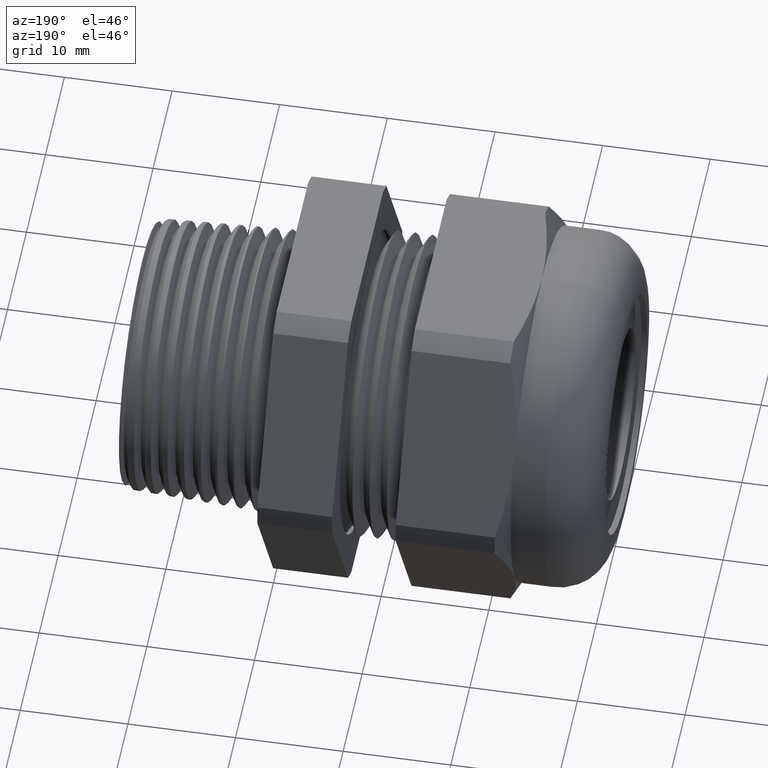
[diagram: clean part render]
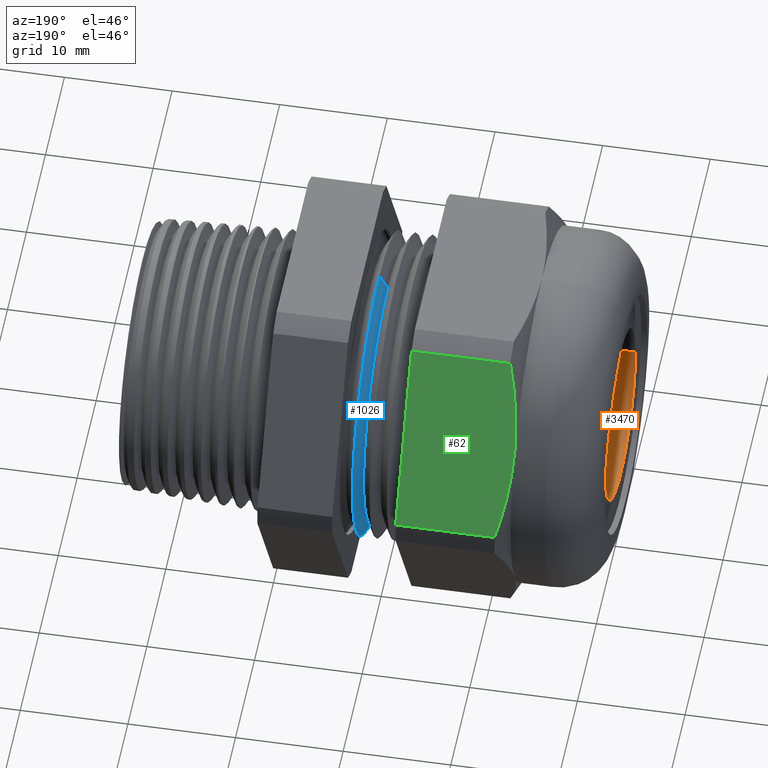
[diagram: same view with three faces highlighted in distinct colors, each labeled with its STEP entity id]
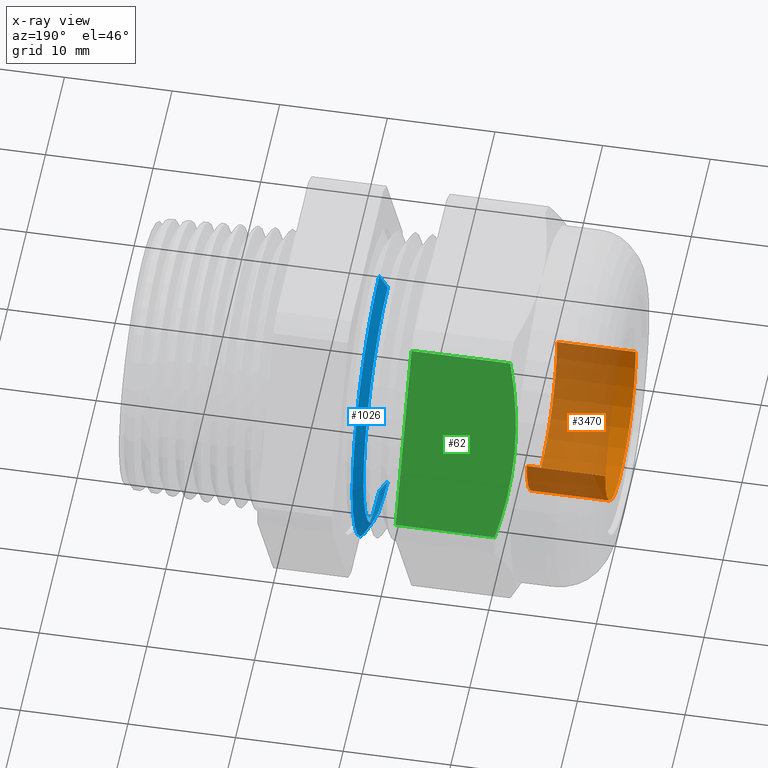
[diagram: x-ray of the same camera — body ghosted, the three highlighted faces saturated]
A machine part, auxiliary view with three faces highlighted in distinct colors.
The next image is the same camera in x-ray (body ghosted, the three faces saturated) — at least one of them is partly hidden behind the body in this view.
Their STEP definitions:

[orange] entity #3470 — the highlighted cylindrical surface (partial cylindrical patch) has radius 8.001 mm, axis along (1, 0, 0).
#345 = ORIENTED_EDGE ( 'NONE', *, *, #351, .F. ) ;
#351 = EDGE_CURVE ( 'NONE', #2409, #358, #1571, .T. ) ;
#357 = EDGE_CURVE ( 'NONE', #2413, #358, #1556, .T. ) ;
#358 = VERTEX_POINT ( 'NONE', #1552 ) ;
#1552 = CARTESIAN_POINT ( 'NONE',  ( -0.9125000000000002000, 0.3150000000000000000, 0.0000000000000000000 ) ) ;
#1553 = DIRECTION ( 'NONE',  ( 0.0000000000000000000, 1.000000000000000000, 0.0000000000000000000 ) ) ;
#1554 = DIRECTION ( 'NONE',  ( 1.000000000000000000, 1.214306433183765200E-016, 0.0000000000000000000 ) ) ;
#1555 = AXIS2_PLACEMENT_3D ( 'NONE', #1562, #1554, #1553 ) ;
#1556 = CIRCLE ( 'NONE', #1555, 0.3150000000000001100 ) ;
#1562 = CARTESIAN_POINT ( 'NONE',  ( -0.9125000000000002000, -1.565199270257833800E-016, 0.0000000000000000000 ) ) ;
#1568 = DIRECTION ( 'NONE',  ( 1.000000000000000000, 1.214306433183765200E-016, 0.0000000000000000000 ) ) ;
#1569 = VECTOR ( 'NONE', #1568, 39.37007874015748100 ) ;
#1570 = CARTESIAN_POINT ( 'NONE',  ( 0.3764656411965714400, 0.3150000000000001700, 0.0000000000000000000 ) ) ;
#1571 = LINE ( 'NONE', #1570, #1569 ) ;
#2408 = ORIENTED_EDGE ( 'NONE', *, *, #2412, .T. ) ;
#2409 = VERTEX_POINT ( 'NONE', #2616 ) ;
#2412 = EDGE_CURVE ( 'NONE', #3529, #2413, #2610, .T. ) ;
#2413 = VERTEX_POINT ( 'NONE', #2606 ) ;
#2414 = ORIENTED_EDGE ( 'NONE', *, *, #357, .T. ) ;
#2606 = CARTESIAN_POINT ( 'NONE',  ( -0.9125000000000002000, -0.3150000000000002800, 3.857637417314163900E-017 ) ) ;
#2607 = DIRECTION ( 'NONE',  ( 1.000000000000000000, 1.214306433183765200E-016, 0.0000000000000000000 ) ) ;
#2608 = VECTOR ( 'NONE', #2607, 39.37007874015748100 ) ;
#2609 = CARTESIAN_POINT ( 'NONE',  ( 0.3764656411965715500, -0.3150000000000001700, 3.857637417314165200E-017 ) ) ;
#2610 = LINE ( 'NONE', #2609, #2608 ) ;
#2616 = CARTESIAN_POINT ( 'NONE',  ( -1.199999999999999700, 0.3150000000000000000, 0.0000000000000000000 ) ) ;
#2771 = DIRECTION ( 'NONE',  ( -2.168133328304969600E-016, 1.000000000000000000, 0.0000000000000000000 ) ) ;
#2772 = DIRECTION ( 'NONE',  ( 1.000000000000000000, 1.214306433183765200E-016, 0.0000000000000000000 ) ) ;
#2773 = AXIS2_PLACEMENT_3D ( 'NONE', #2780, #2772, #2771 ) ;
#2775 = CYLINDRICAL_SURFACE ( 'NONE', #2773, 0.3150000000000001700 ) ;
#2776 = FACE_OUTER_BOUND ( 'NONE', #3461, .T. ) ;
#2780 = CARTESIAN_POINT ( 'NONE',  ( 0.3764656411965715000, 0.0000000000000000000, 0.0000000000000000000 ) ) ;
#2868 = CARTESIAN_POINT ( 'NONE',  ( -1.199999999999999700, -0.3150000000000003900, 3.857637417314165800E-017 ) ) ;
#2875 = DIRECTION ( 'NONE',  ( 0.0000000000000000000, 1.000000000000000000, 0.0000000000000000000 ) ) ;
#2876 = DIRECTION ( 'NONE',  ( 1.000000000000000000, 1.214306433183765200E-016, 0.0000000000000000000 ) ) ;
#2877 = AXIS2_PLACEMENT_3D ( 'NONE', #2884, #2876, #2875 ) ;
#2878 = CIRCLE ( 'NONE', #2877, 0.3150000000000001700 ) ;
#2884 = CARTESIAN_POINT ( 'NONE',  ( -1.199999999999999700, -1.914312369798166000E-016, 0.0000000000000000000 ) ) ;
#3459 = ORIENTED_EDGE ( 'NONE', *, *, #3525, .F. ) ;
#3461 = EDGE_LOOP ( 'NONE', ( #3459, #2408, #2414, #345 ) ) ;
#3470 = ADVANCED_FACE ( 'NONE', ( #2776 ), #2775, .F. ) ;
#3525 = EDGE_CURVE ( 'NONE', #3529, #2409, #2878, .T. ) ;
#3529 = VERTEX_POINT ( 'NONE', #2868 ) ;

[blue] entity #1026 — the highlighted conical surface has half-angle 60 deg.
#882 = EDGE_LOOP ( 'NONE', ( #1030, #1029, #953, #945 ) ) ;
#883 = VERTEX_POINT ( 'NONE', #2097 ) ;
#904 = EDGE_CURVE ( 'NONE', #909, #916, #2122, .T. ) ;
#909 = VERTEX_POINT ( 'NONE', #2177 ) ;
#916 = VERTEX_POINT ( 'NONE', #2170 ) ;
#931 = EDGE_CURVE ( 'NONE', #909, #883, #2194, .T. ) ;
#945 = ORIENTED_EDGE ( 'NONE', *, *, #931, .F. ) ;
#953 = ORIENTED_EDGE ( 'NONE', *, *, #957, .F. ) ;
#957 = EDGE_CURVE ( 'NONE', #883, #1024, #2278, .T. ) ;
#1024 = VERTEX_POINT ( 'NONE', #2398 ) ;
#1026 = ADVANCED_FACE ( 'NONE', ( #2395 ), #2390, .T. ) ;
#1028 = EDGE_CURVE ( 'NONE', #916, #1024, #2381, .T. ) ;
#1029 = ORIENTED_EDGE ( 'NONE', *, *, #1028, .T. ) ;
#1030 = ORIENTED_EDGE ( 'NONE', *, *, #904, .T. ) ;
#1138 = DIRECTION ( 'NONE',  ( 0.0000000000000000000, 0.0000000000000000000, -1.000000000000000000 ) ) ;
#1616 = CARTESIAN_POINT ( 'NONE',  ( -0.3488333477870873600, 0.0000000000000000000, 0.0000000000000000000 ) ) ;
#1618 = AXIS2_PLACEMENT_3D ( 'NONE', #1616, #1619, #1138 ) ;
#1619 = DIRECTION ( 'NONE',  ( 1.000000000000000000, 0.0000000000000000000, 0.0000000000000000000 ) ) ;
#2097 = CARTESIAN_POINT ( 'NONE',  ( -0.3178333622408407400, 6.815159437255022100E-017, -0.5565000000000001100 ) ) ;
#2122 = CIRCLE ( 'NONE', #1618, 0.5028064500000001300 ) ;
#2170 = CARTESIAN_POINT ( 'NONE',  ( -0.3488333477870873600, 6.486381266543230300E-017, 0.5028064500000001300 ) ) ;
#2177 = CARTESIAN_POINT ( 'NONE',  ( -0.3488333477870873600, 0.0000000000000000000, -0.5028064500000001300 ) ) ;
#2191 = DIRECTION ( 'NONE',  ( 0.4999999999999994400, 0.0000000000000000000, -0.8660254037844389300 ) ) ;
#2192 = VECTOR ( 'NONE', #2191, 39.37007874015748100 ) ;
#2193 = CARTESIAN_POINT ( 'NONE',  ( -0.3488333477870873600, 0.0000000000000000000, -0.5028064500000001300 ) ) ;
#2194 = LINE ( 'NONE', #2193, #2192 ) ;
#2274 = DIRECTION ( 'NONE',  ( 0.0000000000000000000, 0.0000000000000000000, -1.000000000000000000 ) ) ;
#2275 = DIRECTION ( 'NONE',  ( 1.000000000000000000, 0.0000000000000000000, 0.0000000000000000000 ) ) ;
#2276 = CARTESIAN_POINT ( 'NONE',  ( -0.3178333622408407400, 0.0000000000000000000, 0.0000000000000000000 ) ) ;
#2277 = AXIS2_PLACEMENT_3D ( 'NONE', #2276, #2275, #2274 ) ;
#2278 = CIRCLE ( 'NONE', #2277, 0.5565000000000001100 ) ;
#2378 = DIRECTION ( 'NONE',  ( 0.4999999999999994400, 1.060575238724907300E-016, 0.8660254037844389300 ) ) ;
#2379 = VECTOR ( 'NONE', #2378, 39.37007874015748100 ) ;
#2380 = CARTESIAN_POINT ( 'NONE',  ( -0.3488333477870873600, 6.157603095831438500E-017, 0.5028064500000001300 ) ) ;
#2381 = LINE ( 'NONE', #2380, #2379 ) ;
#2386 = DIRECTION ( 'NONE',  ( 0.0000000000000000000, 0.0000000000000000000, -1.000000000000000000 ) ) ;
#2387 = DIRECTION ( 'NONE',  ( 1.000000000000000000, 0.0000000000000000000, 0.0000000000000000000 ) ) ;
#2388 = CARTESIAN_POINT ( 'NONE',  ( -0.3488333477870873600, 0.0000000000000000000, 0.0000000000000000000 ) ) ;
#2389 = AXIS2_PLACEMENT_3D ( 'NONE', #2388, #2387, #2386 ) ;
#2390 = CONICAL_SURFACE ( 'NONE', #2389, 0.5028064500000001300, 1.047197551196598300 ) ;
#2395 = FACE_OUTER_BOUND ( 'NONE', #882, .T. ) ;
#2398 = CARTESIAN_POINT ( 'NONE',  ( -0.3178333622408407400, 0.0000000000000000000, 0.5565000000000001100 ) ) ;

[green] entity #62 — the highlighted planar face has unit normal (0, 0.866, 0.5).
#4 = VERTEX_POINT ( 'NONE', #468 ) ;
#33 = ORIENTED_EDGE ( 'NONE', *, *, #3766, .T. ) ;
#44 = ORIENTED_EDGE ( 'NONE', *, *, #46, .T. ) ;
#46 = EDGE_CURVE ( 'NONE', #128, #4, #557, .T. ) ;
#48 = ORIENTED_EDGE ( 'NONE', *, *, #3393, .F. ) ;
#51 = ORIENTED_EDGE ( 'NONE', *, *, #52, .T. ) ;
#52 = EDGE_CURVE ( 'NONE', #3761, #128, #547, .T. ) ;
#60 = EDGE_LOOP ( 'NONE', ( #48, #51, #44, #33, #64 ) ) ;
#62 = ADVANCED_FACE ( 'NONE', ( #584 ), #588, .T. ) ;
#64 = ORIENTED_EDGE ( 'NONE', *, *, #99, .T. ) ;
#99 = EDGE_CURVE ( 'NONE', #3767, #3392, #642, .T. ) ;
#128 = VERTEX_POINT ( 'NONE', #1149 ) ;
#468 = CARTESIAN_POINT ( 'NONE',  ( -0.8674666790032094000, 0.3989927496919443200, 0.6089242856819405700 ) ) ;
#541 = CARTESIAN_POINT ( 'NONE',  ( -0.9125000000000002000, 0.5629165124598848300, 0.3250000000000000700 ) ) ;
#542 = CARTESIAN_POINT ( 'NONE',  ( -0.9124999999999999800, 0.5906510409558672900, 0.2769623875209920600 ) ) ;
#543 = CARTESIAN_POINT ( 'NONE',  ( -0.9083465192945222600, 0.6181565215413857800, 0.2293214976602745400 ) ) ;
#544 = CARTESIAN_POINT ( 'NONE',  ( -0.8928224553762588200, 0.6727694882672528000, 0.1347290645390046600 ) ) ;
#545 = CARTESIAN_POINT ( 'NONE',  ( -0.8814868053153364100, 0.6998789008317275500, 0.08777418461398792100 ) ) ;
#546 = CARTESIAN_POINT ( 'NONE',  ( -0.8674666790032094000, 0.7268402752278256800, 0.04107571431805965400 ) ) ;
#547 = B_SPLINE_CURVE_WITH_KNOTS ( 'NONE', 3,
 ( #546, #545, #544, #543, #542, #541 ),
 .UNSPECIFIED., .F., .F.,
 ( 4, 2, 4 ),
 ( 2.361308568655489700E-007, 0.004201502711991008900, 0.008402769293125151800 ),
 .UNSPECIFIED. ) ;
#549 = CARTESIAN_POINT ( 'NONE',  ( -0.8674666790032094000, 0.3989927496919443200, 0.6089242856819405700 ) ) ;
#550 = CARTESIAN_POINT ( 'NONE',  ( -0.8814205714001799300, 0.4258267530969211400, 0.5624464284140443500 ) ) ;
#551 = CARTESIAN_POINT ( 'NONE',  ( -0.8927551590989975000, 0.4528752911945963000, 0.5155969861584086500 ) ) ;
#552 = CARTESIAN_POINT ( 'NONE',  ( -0.9044328033704851500, 0.4938841810957507700, 0.4445675052876111300 ) ) ;
#553 = CARTESIAN_POINT ( 'NONE',  ( -0.9074375322794262500, 0.5076265280763750900, 0.4207650621019293200 ) ) ;
#554 = CARTESIAN_POINT ( 'NONE',  ( -0.9114778356147181800, 0.5352725060425331800, 0.3728808236396136700 ) ) ;
#555 = CARTESIAN_POINT ( 'NONE',  ( -0.9125000000000002000, 0.5491430333788607200, 0.3488563655653212900 ) ) ;
#556 = CARTESIAN_POINT ( 'NONE',  ( -0.9125000000000002000, 0.5629165124598848300, 0.3250000000000000700 ) ) ;
#557 = B_SPLINE_CURVE_WITH_KNOTS ( 'NONE', 3,
 ( #556, #555, #554, #553, #552, #551, #550, #549 ),
 .UNSPECIFIED., .F., .F.,
 ( 4, 2, 2, 4 ),
 ( 0.008402769293125151800, 0.01048919587064709400, 0.01257562244816903800, 0.01674847560321293000 ),
 .UNSPECIFIED. ) ;
#580 = DIRECTION ( 'NONE',  ( 0.0000000000000000000, -0.5000000000000003300, 0.8660254037844383700 ) ) ;
#581 = DIRECTION ( 'NONE',  ( 0.0000000000000000000, 0.8660254037844384900, 0.5000000000000004400 ) ) ;
#582 = CARTESIAN_POINT ( 'NONE',  ( -2.992185896283379200, 0.7268402752278256800, 0.04107571431805962700 ) ) ;
#583 = AXIS2_PLACEMENT_3D ( 'NONE', #582, #581, #580 ) ;
#584 = FACE_OUTER_BOUND ( 'NONE', #60, .T. ) ;
#588 = PLANE ( 'NONE',  #583 ) ;
#633 = DIRECTION ( 'NONE',  ( 0.0000000000000000000, 0.5000000000000003300, -0.8660254037844383700 ) ) ;
#634 = VECTOR ( 'NONE', #633, 39.37007874015748100 ) ;
#635 = CARTESIAN_POINT ( 'NONE',  ( -0.5058333333333334700, 0.7020415124598852200, 0.08402843139697996300 ) ) ;
#642 = LINE ( 'NONE', #635, #634 ) ;
#1149 = CARTESIAN_POINT ( 'NONE',  ( -0.9125000000000002000, 0.5629165124598848300, 0.3250000000000000700 ) ) ;
#2722 = DIRECTION ( 'NONE',  ( 1.000000000000000000, 0.0000000000000000000, 0.0000000000000000000 ) ) ;
#2723 = VECTOR ( 'NONE', #2722, 39.37007874015748100 ) ;
#2724 = CARTESIAN_POINT ( 'NONE',  ( -2.992185896283379200, 0.7268402752278255700, 0.04107571431805956400 ) ) ;
#2725 = LINE ( 'NONE', #2724, #2723 ) ;
#2726 = CARTESIAN_POINT ( 'NONE',  ( -0.5058333333333336900, 0.7268402752278255700, 0.04107571431805956400 ) ) ;
#3254 = CARTESIAN_POINT ( 'NONE',  ( -0.5058333333333336900, 0.3989927496919443200, 0.6089242856819405700 ) ) ;
#3255 = DIRECTION ( 'NONE',  ( 1.000000000000000000, 0.0000000000000000000, 0.0000000000000000000 ) ) ;
#3256 = VECTOR ( 'NONE', #3255, 39.37007874015748100 ) ;
#3257 = CARTESIAN_POINT ( 'NONE',  ( -2.992185896283379200, 0.3989927496919443200, 0.6089242856819405700 ) ) ;
#3258 = LINE ( 'NONE', #3257, #3256 ) ;
#3265 = CARTESIAN_POINT ( 'NONE',  ( -0.8674666790032094000, 0.7268402752278256800, 0.04107571431805965400 ) ) ;
#3392 = VERTEX_POINT ( 'NONE', #2726 ) ;
#3393 = EDGE_CURVE ( 'NONE', #3761, #3392, #2725, .T. ) ;
#3761 = VERTEX_POINT ( 'NONE', #3265 ) ;
#3766 = EDGE_CURVE ( 'NONE', #4, #3767, #3258, .T. ) ;
#3767 = VERTEX_POINT ( 'NONE', #3254 ) ;